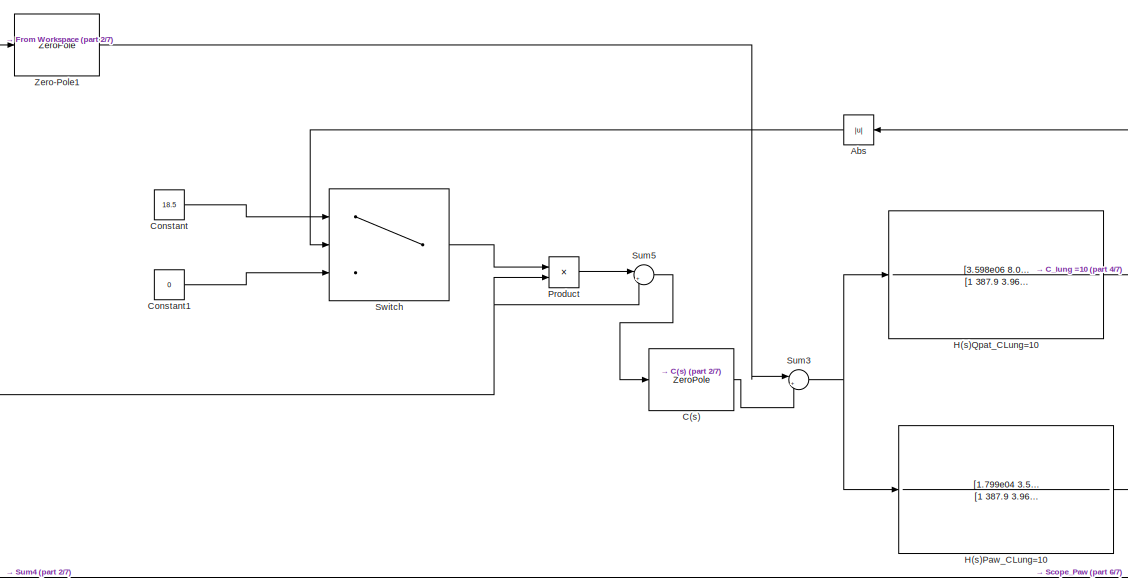
[diagram: root canvas - part 1/7, top center region]
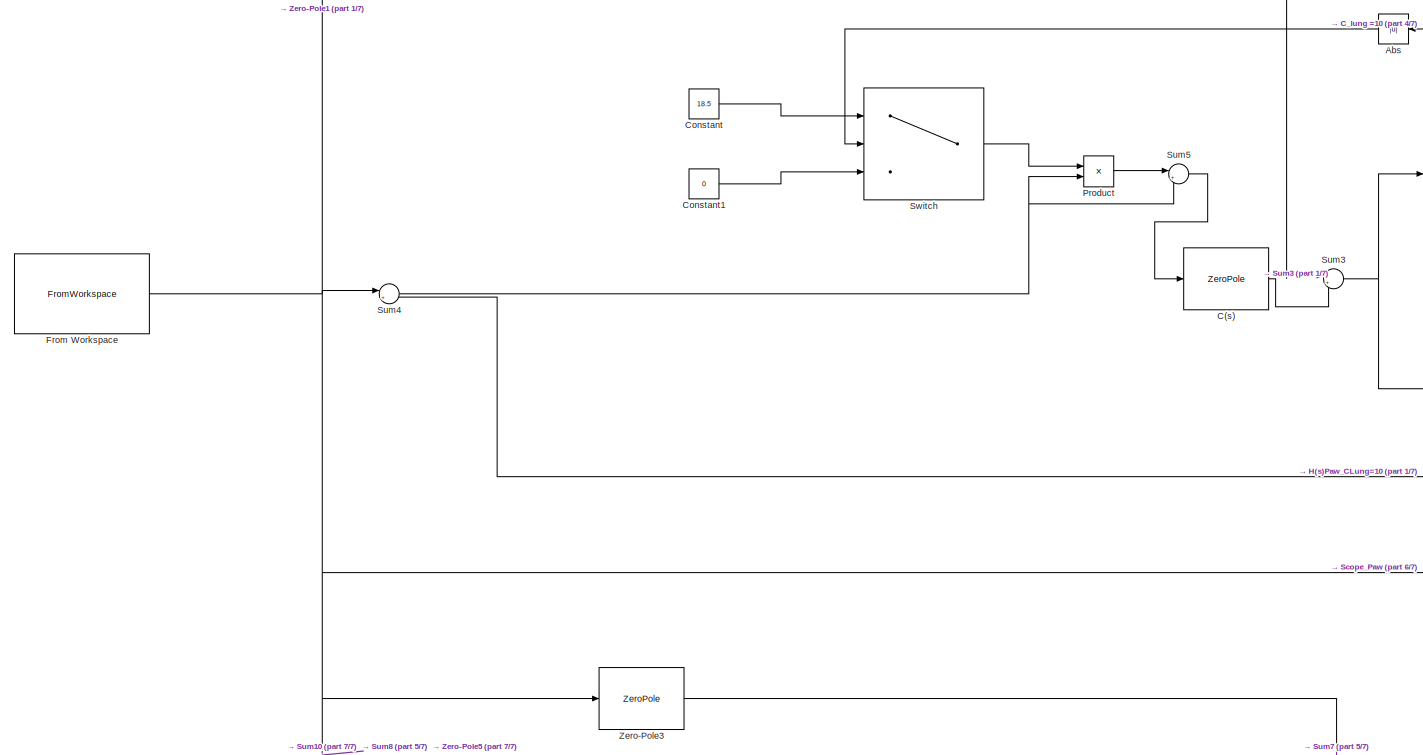
[diagram: root canvas - part 2/7, top left region]
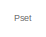
[diagram: root canvas - part 3/7, top left region]
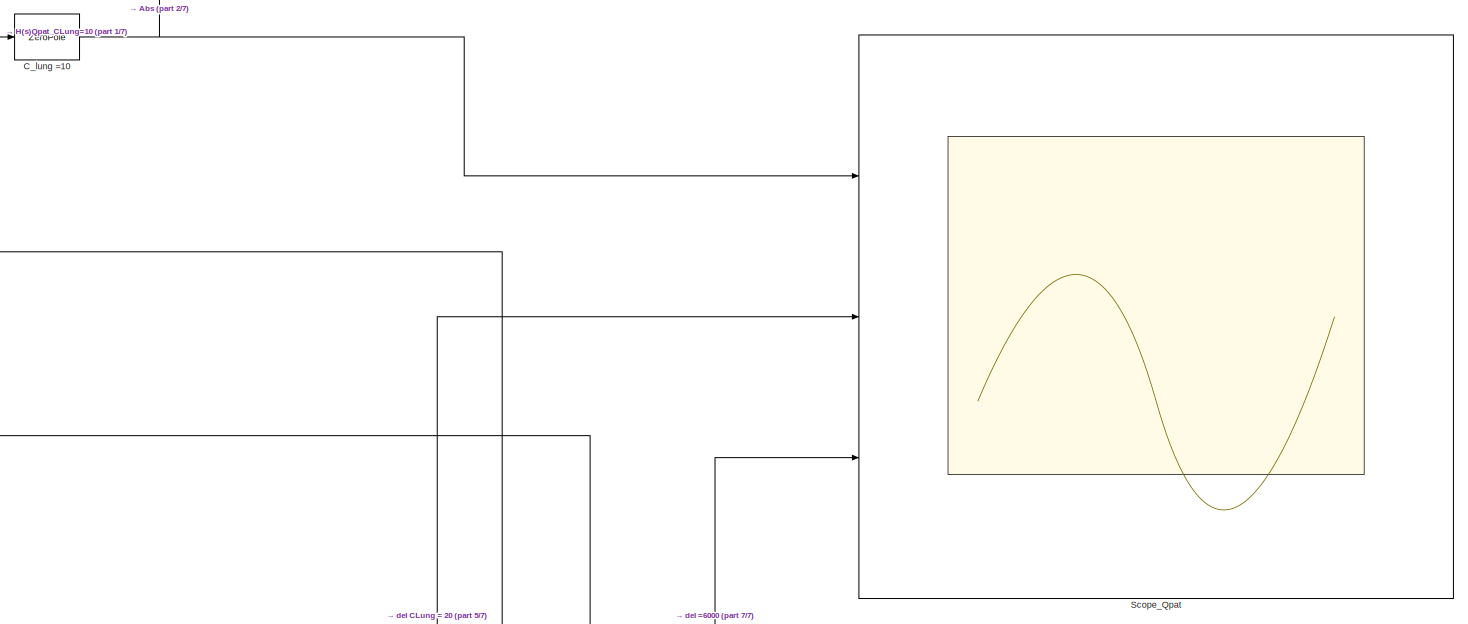
[diagram: root canvas - part 4/7, top right region]
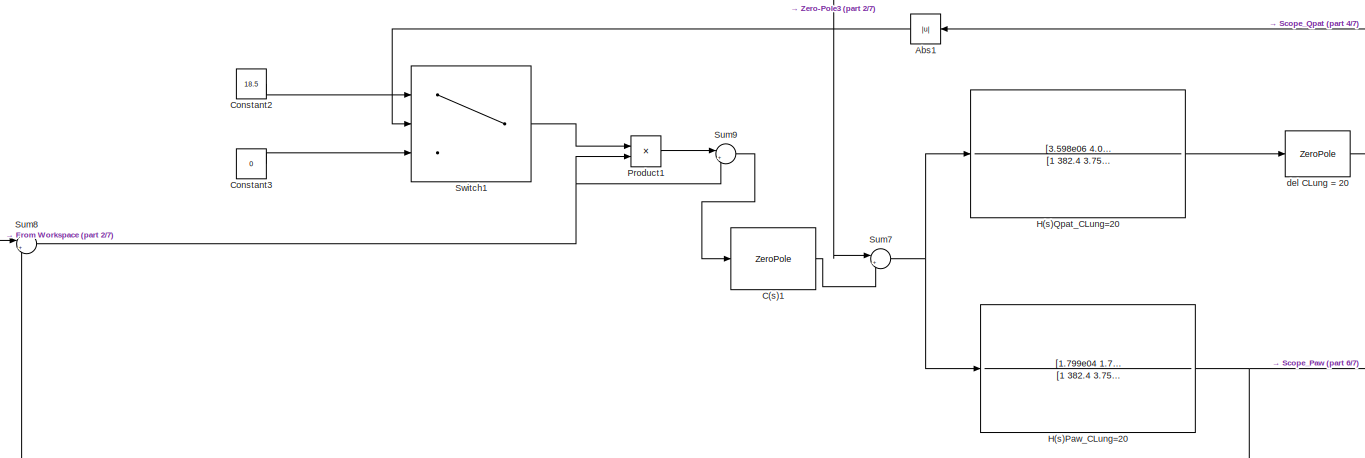
[diagram: root canvas - part 5/7, central region]
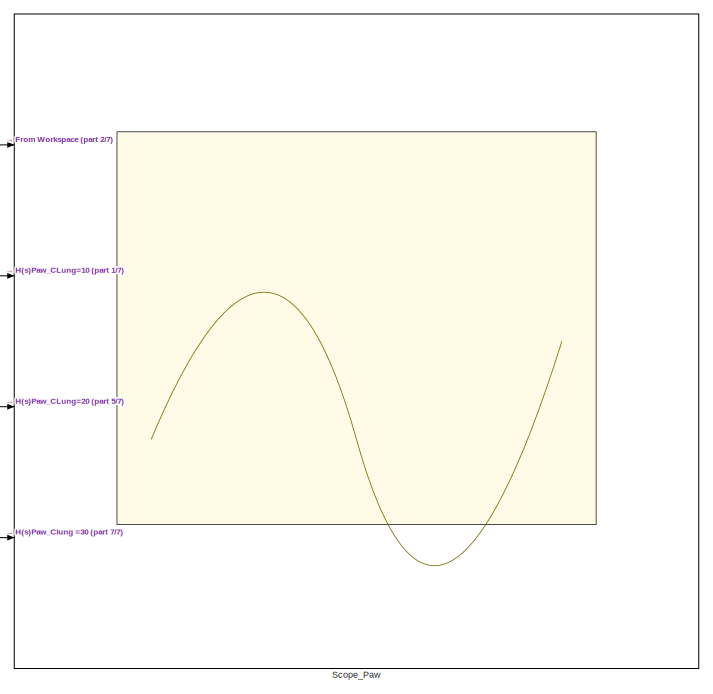
[diagram: root canvas - part 6/7, bottom right region]
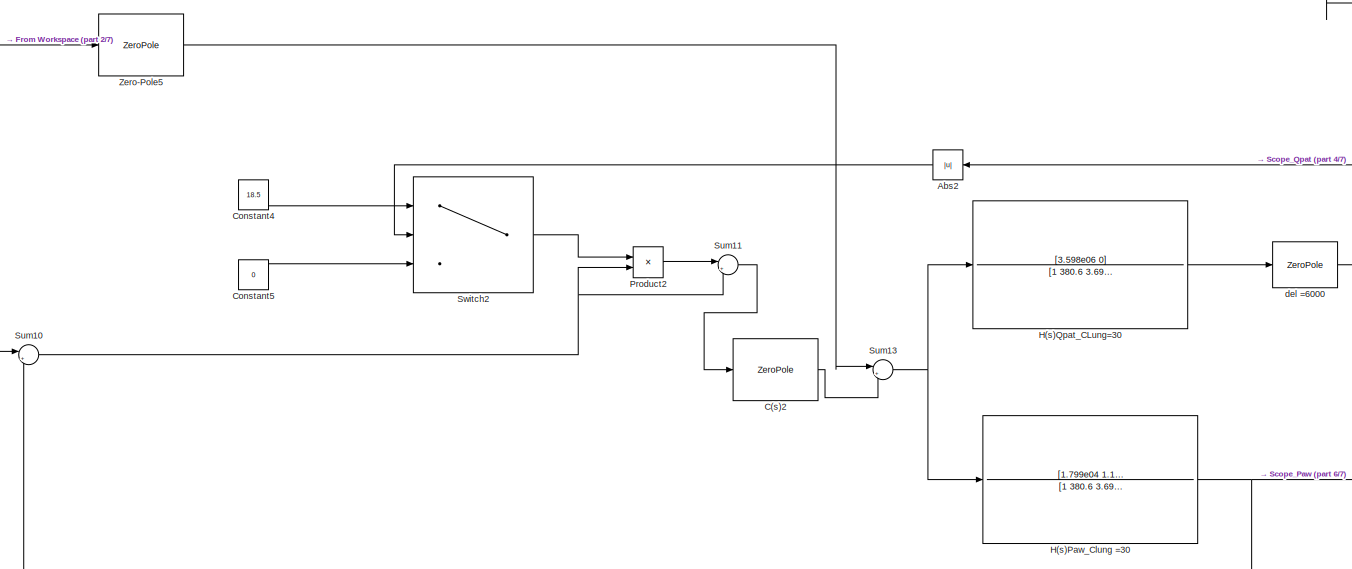
[diagram: root canvas - part 7/7, bottom center region]
MODEL slx_deccd6cdd4c4
KIND model
CONFIG AbsTol = auto
CONFIG EnableMultiTasking = off
CONFIG FixedStep = auto
CONFIG MaxStep = auto
CONFIG MinStep = auto
CONFIG RelTol = 1e-3
CONFIG SampleTimeConstraint = Unconstrained
CONFIG Solver = VariableStepAuto
CONFIG SolverName = VariableStepAuto
CONFIG StartTime = 0.0
CONFIG StopTime = 10.0
BLOCK [Abs] Abs
  SaturateOnIntegerOverflow = off
BLOCK [Abs] Abs1
  SaturateOnIntegerOverflow = off
BLOCK [Abs] Abs2
  SaturateOnIntegerOverflow = off
BLOCK [ZeroPole] C(s)
  Gain = [0.4]
  Poles = [0]
  Zeros = []
BLOCK [ZeroPole] C(s)1
  Gain = [0.4]
  Poles = [0]
  Zeros = []
BLOCK [ZeroPole] C(s)2
  Gain = [0.4]
  Poles = [0]
  Zeros = []
BLOCK [ZeroPole] C_lung  =10
  Gain = [60]
  Poles = []
  Zeros = []
BLOCK [Constant] Constant
  Value = 18.5
BLOCK [Constant] Constant1
  Value = 0
BLOCK [Constant] Constant2
  Value = 18.5
BLOCK [Constant] Constant3
  Value = 0
BLOCK [Constant] Constant4
  Value = 18.5
BLOCK [Constant] Constant5
  Value = 0
BLOCK [FromWorkspace] From Workspace
  VariableName = pset_simulink
BLOCK [TransferFcn] H(s)Paw_CLung=10
  Denominator = [1 387.9 3.963e04 3.868e05]
  Numerator = [1.799e04 3.598e05]
BLOCK [TransferFcn] H(s)Paw_CLung=20
  Denominator = [1 382.4 3.758e04 1.934e05]
  Numerator = [1.799e04 1.799e05]
BLOCK [TransferFcn] H(s)Paw_Clung =30
  Denominator = [1 380.6 3.69e04 1.289e05]
  Numerator = [1.799e04 1.199e05]
BLOCK [TransferFcn] H(s)Qpat_CLung=10
  Denominator = [1 387.9 3.963e04 3.868e05]
  Numerator = [3.598e06 8.079e-09]
BLOCK [TransferFcn] H(s)Qpat_CLung=20
  Denominator = [1 382.4 3.758e04 1.934e05]
  Numerator = [3.598e06 4.039e-09]
BLOCK [TransferFcn] H(s)Qpat_CLung=30
  Denominator = [1 380.6 3.69e04 1.289e05]
  Numerator = [3.598e06 0]
BLOCK [Product] Product
  Ports = [2, 1]
BLOCK [Product] Product1
  Ports = [2, 1]
BLOCK [Product] Product2
  NameLocation = left
  Ports = [2, 1]
BLOCK [Scope] Scope_Paw
  Floating = off
  NumInputPorts = 4
  Ports = [4]
  ScopeSpecificationString = Simulink.scopes.TimeScopeBlockCfg('CurrentConfiguration', extmgr.ConfigurationSet(extmgr.Configuration('Core','General UI',true,'FigureColor',[1 1 1]),extmgr.Configuration('Core','Source UI',true),extmgr.Configuration('Sources','WiredSimulink',true,'DataLoggingVariableName','ScopeData1'),extmgr.Configuration('Visuals','Time Domain',true,'SerializedDisplays',{struct('MinYLimReal','-2.67647','MaxYLi...<+2038ch>
BLOCK [Scope] Scope_Qpat
  Floating = off
  NumInputPorts = 3
  Ports = [3]
  ScopeSpecificationString = Simulink.scopes.TimeScopeBlockCfg('CurrentConfiguration', extmgr.ConfigurationSet(extmgr.Configuration('Core','General UI',true,'FigureColor',[1 1 1]),extmgr.Configuration('Core','Source UI',true),extmgr.Configuration('Sources','WiredSimulink',true),extmgr.Configuration('Visuals','Time Domain',true,'SerializedDisplays',{struct('MinYLimReal','-115940.84243','MaxYLimReal','107167.65334','YLabelReal'...<+1787ch>
BLOCK [Sum] Sum10
  Inputs = |+-
  Ports = [2, 1]
BLOCK [Sum] Sum11
  Inputs = |++
  Ports = [2, 1]
BLOCK [Sum] Sum13
  Inputs = |++
  NameLocation = top
  Ports = [2, 1]
BLOCK [Sum] Sum3
  Inputs = |++
  NameLocation = top
  Ports = [2, 1]
BLOCK [Sum] Sum4
  Inputs = |+-
  Ports = [2, 1]
BLOCK [Sum] Sum5
  Inputs = |++
  Ports = [2, 1]
BLOCK [Sum] Sum7
  Inputs = |++
  NameLocation = top
  Ports = [2, 1]
BLOCK [Sum] Sum8
  Inputs = |+-
  Ports = [2, 1]
BLOCK [Sum] Sum9
  Inputs = |++
  Ports = [2, 1]
BLOCK [Switch] Switch
  Criteria = u2 > Threshold
  InputSameDT = off
  SaturateOnIntegerOverflow = off
  Threshold = 6000
BLOCK [Switch] Switch1
  Criteria = u2 > Threshold
  InputSameDT = off
  SaturateOnIntegerOverflow = off
  Threshold = 6000
BLOCK [Switch] Switch2
  Criteria = u2 > Threshold
  InputSameDT = off
  SaturateOnIntegerOverflow = off
  Threshold = 6000
BLOCK [ZeroPole] Zero-Pole1
  Poles = []
  Zeros = []
BLOCK [ZeroPole] Zero-Pole3
  Poles = []
  Zeros = []
BLOCK [ZeroPole] Zero-Pole5
  Poles = []
  Zeros = []
BLOCK [ZeroPole] del =6000
  Gain = [60]
  Poles = []
  Zeros = []
BLOCK [ZeroPole] del CLung = 20
  Gain = [60]
  Poles = []
  Zeros = []
ANNOTATION (root): Pset
LINE Abs1:1 -> Switch1:2
LINE Abs2:1 -> Switch2:2
LINE Abs:1 -> Switch:2
LINE C(s)1:1 -> Sum7:2
LINE C(s)2:1 -> Sum13:2
LINE C(s):1 -> Sum3:2
NET C_lung  =10:1 -> Abs:1, Scope_Qpat:1
LINE Constant1:1 -> Switch:3
LINE Constant2:1 -> Switch1:1
LINE Constant3:1 -> Switch1:3
LINE Constant4:1 -> Switch2:1
LINE Constant5:1 -> Switch2:3
LINE Constant:1 -> Switch:1
NET From Workspace:1 -> Scope_Paw:1, Sum10:1, Sum4:1, Sum8:1, Zero-Pole1:1, Zero-Pole3:1, Zero-Pole5:1
NET H(s)Paw_CLung=10:1 -> Scope_Paw:2, Sum4:2
NET H(s)Paw_CLung=20:1 -> Scope_Paw:3, Sum8:2
NET H(s)Paw_Clung =30:1 -> Scope_Paw:4, Sum10:2
LINE H(s)Qpat_CLung=10:1 -> C_lung  =10:1
LINE H(s)Qpat_CLung=20:1 -> del CLung = 20:1
LINE H(s)Qpat_CLung=30:1 -> del =6000:1
LINE Product1:1 -> Sum9:1
LINE Product2:1 -> Sum11:1
LINE Product:1 -> Sum5:1
NET Sum10:1 -> Product2:2, Sum11:2
LINE Sum11:1 -> C(s)2:1
NET Sum13:1 -> H(s)Paw_Clung =30:1, H(s)Qpat_CLung=30:1
NET Sum3:1 -> H(s)Paw_CLung=10:1, H(s)Qpat_CLung=10:1
NET Sum4:1 -> Product:2, Sum5:2
LINE Sum5:1 -> C(s):1
NET Sum7:1 -> H(s)Paw_CLung=20:1, H(s)Qpat_CLung=20:1
NET Sum8:1 -> Product1:2, Sum9:2
LINE Sum9:1 -> C(s)1:1
LINE Switch1:1 -> Product1:1
LINE Switch2:1 -> Product2:1
LINE Switch:1 -> Product:1
LINE Zero-Pole1:1 -> Sum3:1
LINE Zero-Pole3:1 -> Sum7:1
LINE Zero-Pole5:1 -> Sum13:1
NET del =6000:1 -> Abs2:1, Scope_Qpat:3
NET del CLung = 20:1 -> Abs1:1, Scope_Qpat:2
note: NET lines group one-source signal fan-out (src -> all destinations, sorted); 1:1 wires keep LINE
